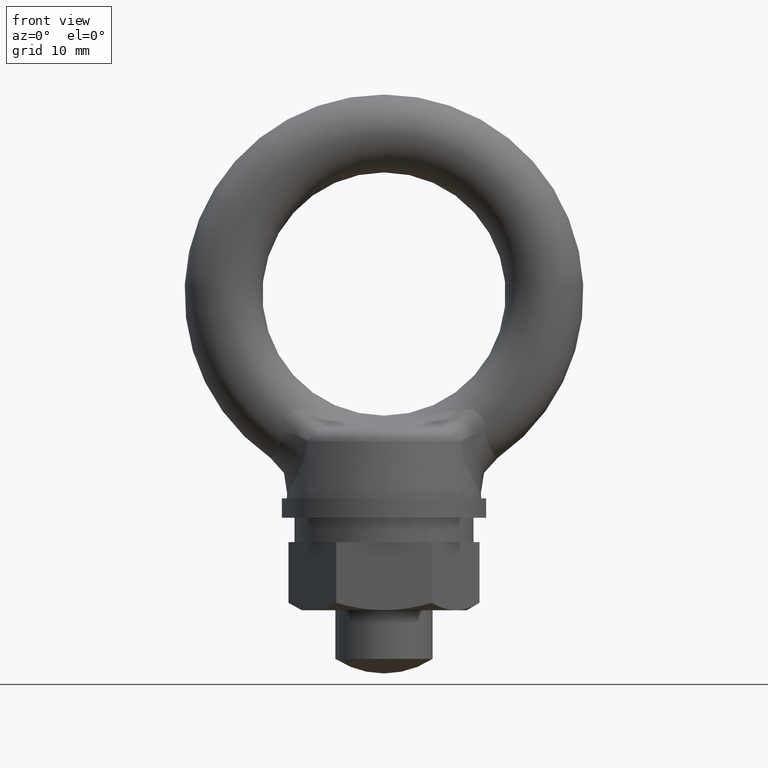
[diagram: clean part render]
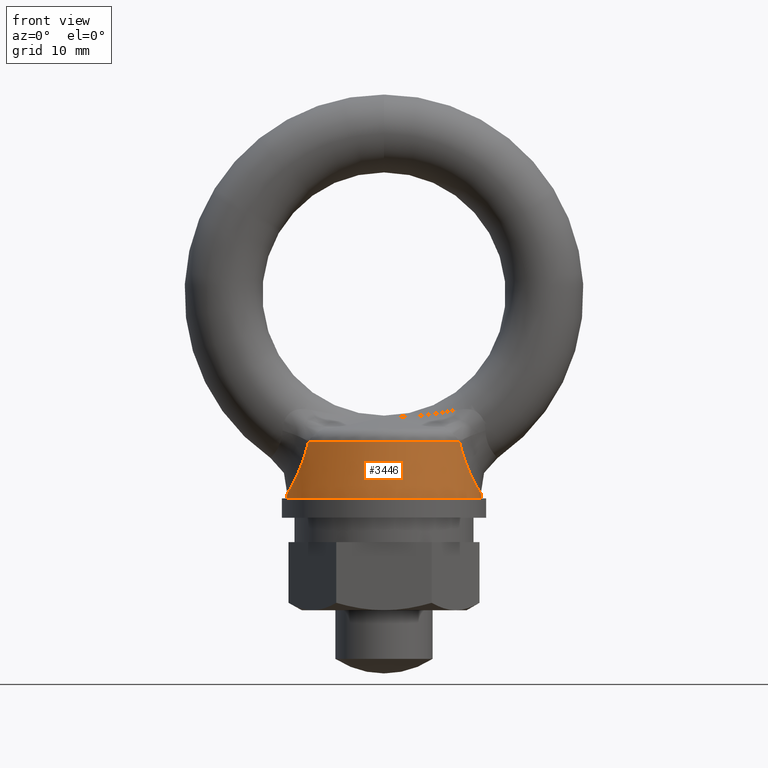
[diagram: same view with one face highlighted and labeled with its STEP entity id]
A machine part, front view. The second image highlights one B-rep face of the part: STEP entity #3446.
In plain terms, the highlighted conical surface has half-angle 5 deg.
Its self-contained STEP definition (entity closure, byte-faithful):
#2445 = DIRECTION ( 'NONE',  ( -1.000000000000000000, 0.0000000000000000000, 0.0000000000000000000 ) ) ;
#2446 = DIRECTION ( 'NONE',  ( 0.0000000000000000000, 0.0000000000000000000, -1.000000000000000000 ) ) ;
#2447 = CARTESIAN_POINT ( 'NONE',  ( 0.0000000000000000000, 0.0000000000000000000, -21.00000000000000000 ) ) ;
#2448 = AXIS2_PLACEMENT_3D ( 'NONE', #2447, #2446, #2445 ) ;
#2449 = CIRCLE ( 'NONE', #2448, 10.00000000000000000 ) ;
#2450 = CARTESIAN_POINT ( 'NONE',  ( -9.955885993554414200, -2.028742894275622300E-012, -20.49578796082059300 ) ) ;
#2500 = CARTESIAN_POINT ( 'NONE',  ( -10.00000000000000000, 0.0000000000000000000, -21.00000000000000000 ) ) ;
#3030 = VERTEX_POINT ( 'NONE', #3638 ) ;
#3032 = EDGE_CURVE ( 'NONE', #3030, #3033, #3637, .T. ) ;
#3033 = VERTEX_POINT ( 'NONE', #3633 ) ;
#3336 = EDGE_CURVE ( 'NONE', #3033, #3340, #2449, .T. ) ;
#3338 = VERTEX_POINT ( 'NONE', #2450 ) ;
#3340 = VERTEX_POINT ( 'NONE', #2500 ) ;
#3354 = EDGE_CURVE ( 'NONE', #3338, #3340, #8182, .T. ) ;
#3446 = ADVANCED_FACE ( 'NONE', ( #5810 ), #5812, .T. ) ;
#3447 = EDGE_LOOP ( 'NONE', ( #3448, #3449, #3452, #3455, #3457, #3502 ) ) ;
#3448 = ORIENTED_EDGE ( 'NONE', *, *, #3032, .F. ) ;
#3449 = ORIENTED_EDGE ( 'NONE', *, *, #3450, .T. ) ;
#3450 = EDGE_CURVE ( 'NONE', #3030, #3451, #5778, .T. ) ;
#3451 = VERTEX_POINT ( 'NONE', #5801 ) ;
#3452 = ORIENTED_EDGE ( 'NONE', *, *, #3453, .T. ) ;
#3453 = EDGE_CURVE ( 'NONE', #3451, #3454, #5776, .T. ) ;
#3454 = VERTEX_POINT ( 'NONE', #5777 ) ;
#3455 = ORIENTED_EDGE ( 'NONE', *, *, #3456, .T. ) ;
#3456 = EDGE_CURVE ( 'NONE', #3454, #3338, #5747, .T. ) ;
#3457 = ORIENTED_EDGE ( 'NONE', *, *, #3354, .T. ) ;
#3502 = ORIENTED_EDGE ( 'NONE', *, *, #3336, .F. ) ;
#3633 = CARTESIAN_POINT ( 'NONE',  ( 10.00000000000000000, 1.224606353822377100E-015, -21.00000000000000000 ) ) ;
#3634 = DIRECTION ( 'NONE',  ( 0.08715803485720417800, 1.067342832728044500E-017, -0.9961944975554876100 ) ) ;
#3635 = VECTOR ( 'NONE', #3634, 1000.000000000000100 ) ;
#3636 = CARTESIAN_POINT ( 'NONE',  ( 9.387563269557979600, 1.149606962681027100E-015, -14.00000164107894200 ) ) ;
#3637 = LINE ( 'NONE', #3636, #3635 ) ;
#3638 = CARTESIAN_POINT ( 'NONE',  ( 9.955885993554414200, 2.030656532070525200E-012, -20.49578796082059300 ) ) ;
#5725 = CARTESIAN_POINT ( 'NONE',  ( -9.955885993554414200, -2.028742894275622300E-012, -20.49578796082059300 ) ) ;
#5726 = CARTESIAN_POINT ( 'NONE',  ( -9.955885993554327100, -0.3657275240793376200, -20.49578796082045100 ) ) ;
#5727 = CARTESIAN_POINT ( 'NONE',  ( -9.932544546647314100, -0.7244296777551357800, -20.45828552777055600 ) ) ;
#5728 = CARTESIAN_POINT ( 'NONE',  ( -9.865353101718785200, -1.252486508463236400, -20.34803947824609300 ) ) ;
#5729 = CARTESIAN_POINT ( 'NONE',  ( -9.837333292063071600, -1.427980581006030200, -20.30181331741691500 ) ) ;
#5730 = CARTESIAN_POINT ( 'NONE',  ( -9.771941598418415300, -1.769612213719068800, -20.19257703551616200 ) ) ;
#5731 = CARTESIAN_POINT ( 'NONE',  ( -9.734804380016205600, -1.935030454429257600, -20.12995872626705600 ) ) ;
#5732 = CARTESIAN_POINT ( 'NONE',  ( -9.611922188606127900, -2.416341255347066700, -19.91948627331188200 ) ) ;
#5733 = CARTESIAN_POINT ( 'NONE',  ( -9.514747698480519500, -2.717406389784828400, -19.74921834025179000 ) ) ;
#5734 = CARTESIAN_POINT ( 'NONE',  ( -9.351997443421655700, -3.141460765879729800, -19.44977693694196900 ) ) ;
#5735 = CARTESIAN_POINT ( 'NONE',  ( -9.294620810465218600, -3.278717372852791600, -19.34199790753970700 ) ) ;
#5736 = CARTESIAN_POINT ( 'NONE',  ( -9.177905272989097100, -3.538079861692929700, -19.11676631391539200 ) ) ;
#5737 = CARTESIAN_POINT ( 'NONE',  ( -9.118310566304362700, -3.660950575487504900, -18.99886489947441600 ) ) ;
#5738 = CARTESIAN_POINT ( 'NONE',  ( -8.937439847729324400, -4.010802158584025900, -18.62998075006827700 ) ) ;
#5739 = CARTESIAN_POINT ( 'NONE',  ( -8.814099166400556100, -4.219132670111715600, -18.36390273650750500 ) ) ;
#5740 = CARTESIAN_POINT ( 'NONE',  ( -8.569500128992782400, -4.591127687307208700, -17.79229638933241000 ) ) ;
#5741 = CARTESIAN_POINT ( 'NONE',  ( -8.448650898237595200, -4.753804588081175500, -17.48708771104530200 ) ) ;
#5742 = CARTESIAN_POINT ( 'NONE',  ( -8.223497949102352300, -5.029049508848709500, -16.85967545764327700 ) ) ;
#5743 = CARTESIAN_POINT ( 'NONE',  ( -8.118040680862566900, -5.143364533151506100, -16.53487376259072400 ) ) ;
#5744 = CARTESIAN_POINT ( 'NONE',  ( -7.924951897885458500, -5.331774767794621000, -15.86430205083240900 ) ) ;
#5745 = CARTESIAN_POINT ( 'NONE',  ( -7.837173701022173600, -5.405870336583355100, -15.51749412337730400 ) ) ;
#5747 = B_SPLINE_CURVE_WITH_KNOTS ( 'NONE', 3,
 ( #5749, #5745, #5744, #5743, #5742, #5741, #5740, #5739, #5738, #5737, #5736, #5735, #5734, #5733, #5732, #5731, #5730, #5729, #5728, #5727, #5726, #5725 ),
 .UNSPECIFIED., .F., .F.,
 ( 4, 2, 2, 2, 2, 2, 2, 2, 2, 2, 4 ),
 ( 0.0000000000000000000, 0.001092146086648861700, 0.002184292173297723400, 0.003276438259946585100, 0.004368584346595446800, 0.004914657389919877900, 0.005460730433244308100, 0.006552876519893175400, 0.007098949563217606500, 0.007645022606542037500, 0.008737168693190898800 ),
 .UNSPECIFIED. ) ;
#5749 = CARTESIAN_POINT ( 'NONE',  ( -7.760410120876260400, -5.461485613272089700, -15.16582361561554900 ) ) ;
#5754 = CARTESIAN_POINT ( 'NONE',  ( 7.760410120876260400, -5.461485613272089700, -15.16582361561554900 ) ) ;
#5755 = CARTESIAN_POINT ( 'NONE',  ( 7.913704483389681200, -5.350423722075756700, -15.86809813433437100 ) ) ;
#5756 = CARTESIAN_POINT ( 'NONE',  ( 8.108247238750781300, -5.169776252009127900, -16.53817346479218400 ) ) ;
#5757 = CARTESIAN_POINT ( 'NONE',  ( 8.448589367295010500, -4.753961759298617200, -17.48708710548955400 ) ) ;
#5758 = CARTESIAN_POINT ( 'NONE',  ( 8.568329162953711300, -4.592686322834911300, -17.78932410250962100 ) ) ;
#5759 = CARTESIAN_POINT ( 'NONE',  ( 8.811383033758465500, -4.223482147632422500, -18.35778747662589800 ) ) ;
#5760 = CARTESIAN_POINT ( 'NONE',  ( 8.935146831457398500, -4.015134655598919800, -18.62525502555936900 ) ) ;
#5761 = CARTESIAN_POINT ( 'NONE',  ( 9.179693954334842600, -3.542321241001758400, -19.12410464747375700 ) ) ;
#5762 = CARTESIAN_POINT ( 'NONE',  ( 9.296707669799948400, -3.284952945513295300, -19.34794736367198500 ) ) ;
#5763 = CARTESIAN_POINT ( 'NONE',  ( 9.511943043456110300, -2.725272241202753700, -19.74415914991467200 ) ) ;
#5764 = CARTESIAN_POINT ( 'NONE',  ( 9.610782753211859500, -2.420902231676887300, -19.91753953609090600 ) ) ;
#5765 = CARTESIAN_POINT ( 'NONE',  ( 9.777200841859619000, -1.768871823722089500, -20.20257043445539200 ) ) ;
#5766 = CARTESIAN_POINT ( 'NONE',  ( 9.842620695228824000, -1.429890596074381500, -20.31073325029626600 ) ) ;
#5767 = CARTESIAN_POINT ( 'NONE',  ( 9.909598342861130500, -0.9053784728590519300, -20.42063963923516200 ) ) ;
#5768 = CARTESIAN_POINT ( 'NONE',  ( 9.926770315475065900, -0.7276484838180348200, -20.44857143745197100 ) ) ;
#5769 = CARTESIAN_POINT ( 'NONE',  ( 9.949965243970382300, -0.3660831602386967500, -20.48622735366315000 ) ) ;
#5770 = CARTESIAN_POINT ( 'NONE',  ( 9.955885993554458600, -0.1824289259746165200, -20.49578796082066700 ) ) ;
#5771 = CARTESIAN_POINT ( 'NONE',  ( 9.955885993554414200, 2.030656532070525200E-012, -20.49578796082059300 ) ) ;
#5772 = DIRECTION ( 'NONE',  ( 1.000000000000000000, 0.0000000000000000000, 0.0000000000000000000 ) ) ;
#5773 = DIRECTION ( 'NONE',  ( 0.0000000000000000000, 0.0000000000000000000, -1.000000000000000000 ) ) ;
#5774 = CARTESIAN_POINT ( 'NONE',  ( 0.0000000000000000000, 0.0000000000000000000, -15.16582361561554900 ) ) ;
#5775 = AXIS2_PLACEMENT_3D ( 'NONE', #5774, #5773, #5772 ) ;
#5776 = CIRCLE ( 'NONE', #5775, 9.489562178950970800 ) ;
#5777 = CARTESIAN_POINT ( 'NONE',  ( -7.760410120876260400, -5.461485613272089700, -15.16582361561554900 ) ) ;
#5778 = B_SPLINE_CURVE_WITH_KNOTS ( 'NONE', 3,
 ( #5771, #5770, #5769, #5768, #5767, #5766, #5765, #5764, #5763, #5762, #5761, #5760, #5759, #5758, #5757, #5756, #5755, #5754 ),
 .UNSPECIFIED., .F., .F.,
 ( 4, 2, 2, 2, 2, 2, 2, 2, 4 ),
 ( 0.008737168693190888400, 0.009281943216518354400, 0.009826717739845822200, 0.01091626678650075300, 0.01200581583315568500, 0.01309536487981061700, 0.01418491392646554900, 0.01527446297312048100, 0.01745356106643034700 ),
 .UNSPECIFIED. ) ;
#5801 = CARTESIAN_POINT ( 'NONE',  ( 7.760410120876260400, -5.461485613272089700, -15.16582361561554900 ) ) ;
#5802 = DIRECTION ( 'NONE',  ( -1.000000000000000000, 0.0000000000000000000, 0.0000000000000000000 ) ) ;
#5803 = DIRECTION ( 'NONE',  ( 0.0000000000000000000, 0.0000000000000000000, -1.000000000000000000 ) ) ;
#5804 = CARTESIAN_POINT ( 'NONE',  ( 0.0000000000000000000, 0.0000000000000000000, -14.00000164107894200 ) ) ;
#5805 = AXIS2_PLACEMENT_3D ( 'NONE', #5804, #5803, #5802 ) ;
#5810 = FACE_OUTER_BOUND ( 'NONE', #3447, .T. ) ;
#5812 = CONICAL_SURFACE ( 'NONE', #5805, 9.387563269557979600, 0.08726876346498016500 ) ;
#8179 = DIRECTION ( 'NONE',  ( -0.08715803485720417800, 0.0000000000000000000, -0.9961944975554876100 ) ) ;
#8180 = VECTOR ( 'NONE', #8179, 1000.000000000000100 ) ;
#8181 = CARTESIAN_POINT ( 'NONE',  ( -9.387563269557979600, 0.0000000000000000000, -14.00000164107894200 ) ) ;
#8182 = LINE ( 'NONE', #8181, #8180 ) ;